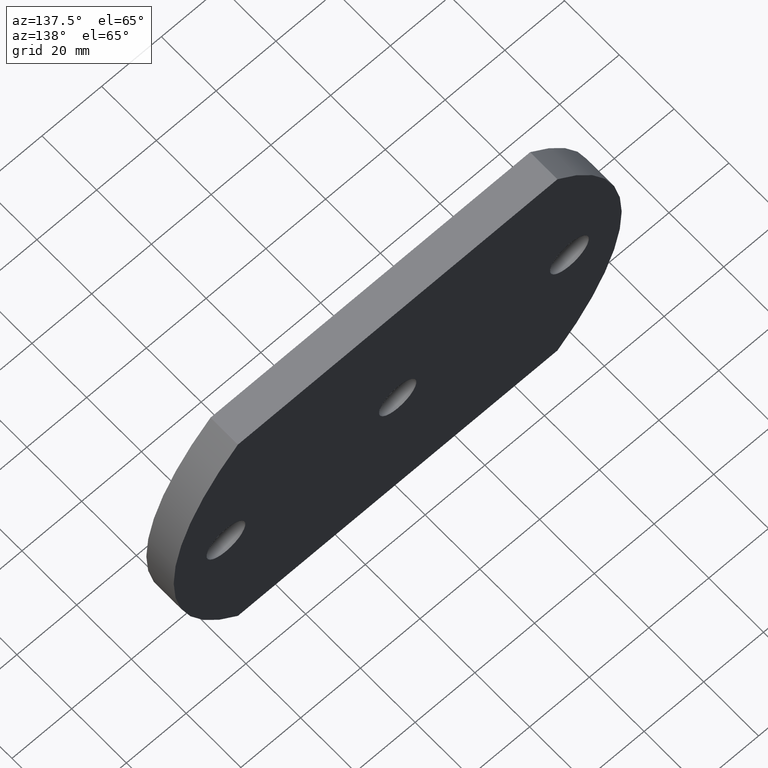
[diagram: clean part render]
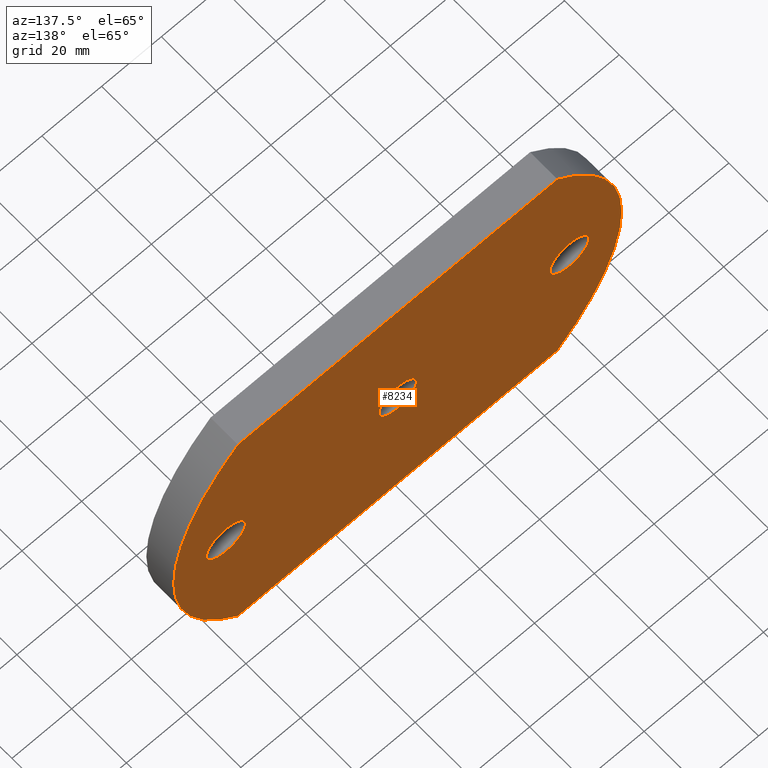
[diagram: same view with one face highlighted and labeled with its STEP entity id]
A machine part, auxiliary view. The second image highlights one B-rep face of the part: STEP entity #8234.
In plain terms, the highlighted planar face has unit normal (0, -1, 0).
Its self-contained STEP definition (entity closure, byte-faithful):
#302 = VERTEX_POINT ( 'NONE', #10068 ) ;
#431 = DIRECTION ( 'NONE',  ( 0.0000000000000000000, 0.0000000000000000000, -1.000000000000000000 ) ) ;
#477 = DIRECTION ( 'NONE',  ( 0.0000000000000000000, 0.0000000000000000000, 1.000000000000000000 ) ) ;
#550 = DIRECTION ( 'NONE',  ( 0.0000000000000000000, 1.000000000000000000, 0.0000000000000000000 ) ) ;
#660 = DIRECTION ( 'NONE',  ( 0.0000000000000000000, 0.0000000000000000000, 1.000000000000000000 ) ) ;
#864 = CARTESIAN_POINT ( 'NONE',  ( -57.50000000000000000, 10.00000000000000000, 0.0000000000000000000 ) ) ;
#877 = CIRCLE ( 'NONE', #9375, 68.88953488372095500 ) ;
#882 = DIRECTION ( 'NONE',  ( 0.0000000000000000000, -0.0000000000000000000, -1.000000000000000000 ) ) ;
#888 = VERTEX_POINT ( 'NONE', #1397 ) ;
#1066 = CARTESIAN_POINT ( 'NONE',  ( -53.49999999999998600, 10.00000000000000000, -50.00000000000003600 ) ) ;
#1134 = VECTOR ( 'NONE', #9729, 1000.000000000000000 ) ;
#1173 = DIRECTION ( 'NONE',  ( 0.0000000000000000000, 1.000000000000000000, 0.0000000000000000000 ) ) ;
#1265 = CARTESIAN_POINT ( 'NONE',  ( 0.0000000000000000000, 10.00000000000000000, 6.250000000000000000 ) ) ;
#1289 = CIRCLE ( 'NONE', #6177, 6.499999999999994700 ) ;
#1292 = VERTEX_POINT ( 'NONE', #1066 ) ;
#1397 = CARTESIAN_POINT ( 'NONE',  ( 57.50000000000000000, 10.00000000000000000, -6.499999999999994700 ) ) ;
#1494 = AXIS2_PLACEMENT_3D ( 'NONE', #7351, #10624, #660 ) ;
#1538 = ORIENTED_EDGE ( 'NONE', *, *, #4684, .F. ) ;
#1636 = VERTEX_POINT ( 'NONE', #9532 ) ;
#1973 = CARTESIAN_POINT ( 'NONE',  ( -57.50000000000000000, 10.00000000000000000, 6.500000000000000900 ) ) ;
#2214 = CARTESIAN_POINT ( 'NONE',  ( -57.50000000000000000, 10.00000000000000000, 0.0000000000000000000 ) ) ;
#2340 = LINE ( 'NONE', #4543, #4836 ) ;
#2386 = CARTESIAN_POINT ( 'NONE',  ( -57.50000000000000000, 10.00000000000000000, -6.500000000000000900 ) ) ;
#2443 = LINE ( 'NONE', #7081, #1134 ) ;
#2543 = VERTEX_POINT ( 'NONE', #6031 ) ;
#2689 = EDGE_CURVE ( 'NONE', #1636, #888, #5741, .T. ) ;
#2817 = EDGE_CURVE ( 'NONE', #5200, #5863, #4044, .T. ) ;
#3134 = DIRECTION ( 'NONE',  ( 0.0000000000000000000, 1.000000000000000000, 0.0000000000000000000 ) ) ;
#3438 = EDGE_CURVE ( 'NONE', #7588, #2543, #9694, .T. ) ;
#3473 = EDGE_LOOP ( 'NONE', ( #5183, #4158 ) ) ;
#3634 = AXIS2_PLACEMENT_3D ( 'NONE', #5682, #3134, #6502 ) ;
#3858 = EDGE_LOOP ( 'NONE', ( #9569, #5728 ) ) ;
#3899 = DIRECTION ( 'NONE',  ( 0.0000000000000000000, 1.000000000000000000, 0.0000000000000000000 ) ) ;
#3942 = ORIENTED_EDGE ( 'NONE', *, *, #2817, .F. ) ;
#4044 = CIRCLE ( 'NONE', #5748, 6.500000000000000900 ) ;
#4158 = ORIENTED_EDGE ( 'NONE', *, *, #8112, .F. ) ;
#4341 = CARTESIAN_POINT ( 'NONE',  ( 6.110465116279065100, 10.00000000000000000, 0.0000000000000000000 ) ) ;
#4526 = EDGE_LOOP ( 'NONE', ( #1538, #3942 ) ) ;
#4543 = CARTESIAN_POINT ( 'NONE',  ( -53.50000000000003600, 10.00000000000000000, 49.99999999999998600 ) ) ;
#4684 = EDGE_CURVE ( 'NONE', #5863, #5200, #7600, .T. ) ;
#4836 = VECTOR ( 'NONE', #8053, 1000.000000000000000 ) ;
#4876 = VERTEX_POINT ( 'NONE', #8673 ) ;
#4984 = ORIENTED_EDGE ( 'NONE', *, *, #9684, .T. ) ;
#5075 = ORIENTED_EDGE ( 'NONE', *, *, #8064, .T. ) ;
#5183 = ORIENTED_EDGE ( 'NONE', *, *, #2689, .F. ) ;
#5200 = VERTEX_POINT ( 'NONE', #2386 ) ;
#5441 = CARTESIAN_POINT ( 'NONE',  ( -6.110465116279051800, 10.00000000000000000, 0.0000000000000000000 ) ) ;
#5463 = CARTESIAN_POINT ( 'NONE',  ( 6.110465116279065100, 10.00000000000000000, 0.0000000000000000000 ) ) ;
#5557 = DIRECTION ( 'NONE',  ( 0.0000000000000000000, 1.000000000000000000, 0.0000000000000000000 ) ) ;
#5682 = CARTESIAN_POINT ( 'NONE',  ( 57.50000000000000000, 10.00000000000000000, 0.0000000000000000000 ) ) ;
#5728 = ORIENTED_EDGE ( 'NONE', *, *, #10736, .F. ) ;
#5741 = CIRCLE ( 'NONE', #3634, 6.499999999999994700 ) ;
#5748 = AXIS2_PLACEMENT_3D ( 'NONE', #864, #8314, #7545 ) ;
#5791 = CARTESIAN_POINT ( 'NONE',  ( 53.49999999999996400, 10.00000000000000000, 50.00000000000001400 ) ) ;
#5863 = VERTEX_POINT ( 'NONE', #1973 ) ;
#6031 = CARTESIAN_POINT ( 'NONE',  ( 7.654042494670957600E-016, 10.00000000000000000, -6.250000000000000000 ) ) ;
#6177 = AXIS2_PLACEMENT_3D ( 'NONE', #9783, #5557, #10556 ) ;
#6242 = EDGE_CURVE ( 'NONE', #7439, #4876, #8000, .T. ) ;
#6502 = DIRECTION ( 'NONE',  ( 0.0000000000000000000, 0.0000000000000000000, 1.000000000000000000 ) ) ;
#6750 = AXIS2_PLACEMENT_3D ( 'NONE', #4341, #7632, #882 ) ;
#6971 = AXIS2_PLACEMENT_3D ( 'NONE', #5463, #7048, #431 ) ;
#7048 = DIRECTION ( 'NONE',  ( 0.0000000000000000000, 1.000000000000000000, -0.0000000000000000000 ) ) ;
#7081 = CARTESIAN_POINT ( 'NONE',  ( -53.49999999999999300, 10.00000000000000000, -50.00000000000001400 ) ) ;
#7133 = DIRECTION ( 'NONE',  ( 0.0000000000000000000, 0.0000000000000000000, 1.000000000000000000 ) ) ;
#7186 = FACE_BOUND ( 'NONE', #3858, .T. ) ;
#7351 = CARTESIAN_POINT ( 'NONE',  ( 0.0000000000000000000, 10.00000000000000000, 0.0000000000000000000 ) ) ;
#7367 = EDGE_LOOP ( 'NONE', ( #8838, #4984, #9213, #5075 ) ) ;
#7439 = VERTEX_POINT ( 'NONE', #5791 ) ;
#7541 = CIRCLE ( 'NONE', #1494, 6.250000000000000000 ) ;
#7545 = DIRECTION ( 'NONE',  ( 0.0000000000000000000, 0.0000000000000000000, 1.000000000000000000 ) ) ;
#7588 = VERTEX_POINT ( 'NONE', #1265 ) ;
#7599 = PLANE ( 'NONE',  #6750 ) ;
#7600 = CIRCLE ( 'NONE', #9001, 6.500000000000000900 ) ;
#7632 = DIRECTION ( 'NONE',  ( 0.0000000000000000000, -1.000000000000000000, 0.0000000000000000000 ) ) ;
#7768 = DIRECTION ( 'NONE',  ( 0.0000000000000000000, 0.0000000000000000000, 1.000000000000000000 ) ) ;
#8000 = CIRCLE ( 'NONE', #6971, 68.88953488372092700 ) ;
#8042 = EDGE_CURVE ( 'NONE', #1292, #302, #877, .T. ) ;
#8053 = DIRECTION ( 'NONE',  ( 1.000000000000000000, 0.0000000000000000000, 2.593979029498029300E-016 ) ) ;
#8064 = EDGE_CURVE ( 'NONE', #302, #7439, #2340, .T. ) ;
#8112 = EDGE_CURVE ( 'NONE', #888, #1636, #1289, .T. ) ;
#8206 = AXIS2_PLACEMENT_3D ( 'NONE', #8566, #1173, #7768 ) ;
#8234 = ADVANCED_FACE ( 'NONE', ( #10194, #10071, #7186, #10741 ), #7599, .F. ) ;
#8314 = DIRECTION ( 'NONE',  ( 0.0000000000000000000, 1.000000000000000000, 0.0000000000000000000 ) ) ;
#8566 = CARTESIAN_POINT ( 'NONE',  ( 0.0000000000000000000, 10.00000000000000000, 0.0000000000000000000 ) ) ;
#8673 = CARTESIAN_POINT ( 'NONE',  ( 53.50000000000000700, 10.00000000000000000, -49.99999999999998600 ) ) ;
#8838 = ORIENTED_EDGE ( 'NONE', *, *, #6242, .T. ) ;
#9001 = AXIS2_PLACEMENT_3D ( 'NONE', #2214, #550, #477 ) ;
#9213 = ORIENTED_EDGE ( 'NONE', *, *, #8042, .T. ) ;
#9375 = AXIS2_PLACEMENT_3D ( 'NONE', #5441, #3899, #7133 ) ;
#9532 = CARTESIAN_POINT ( 'NONE',  ( 57.50000000000000000, 10.00000000000000000, 6.499999999999994700 ) ) ;
#9569 = ORIENTED_EDGE ( 'NONE', *, *, #3438, .F. ) ;
#9684 = EDGE_CURVE ( 'NONE', #4876, #1292, #2443, .T. ) ;
#9694 = CIRCLE ( 'NONE', #8206, 6.250000000000000000 ) ;
#9729 = DIRECTION ( 'NONE',  ( -1.000000000000000000, -0.0000000000000000000, -2.593979029498029300E-016 ) ) ;
#9783 = CARTESIAN_POINT ( 'NONE',  ( 57.50000000000000000, 10.00000000000000000, 0.0000000000000000000 ) ) ;
#10068 = CARTESIAN_POINT ( 'NONE',  ( -53.50000000000003600, 10.00000000000000000, 49.99999999999998600 ) ) ;
#10071 = FACE_BOUND ( 'NONE', #4526, .T. ) ;
#10194 = FACE_BOUND ( 'NONE', #3473, .T. ) ;
#10556 = DIRECTION ( 'NONE',  ( 0.0000000000000000000, 0.0000000000000000000, 1.000000000000000000 ) ) ;
#10624 = DIRECTION ( 'NONE',  ( 0.0000000000000000000, 1.000000000000000000, 0.0000000000000000000 ) ) ;
#10736 = EDGE_CURVE ( 'NONE', #2543, #7588, #7541, .T. ) ;
#10741 = FACE_OUTER_BOUND ( 'NONE', #7367, .T. ) ;